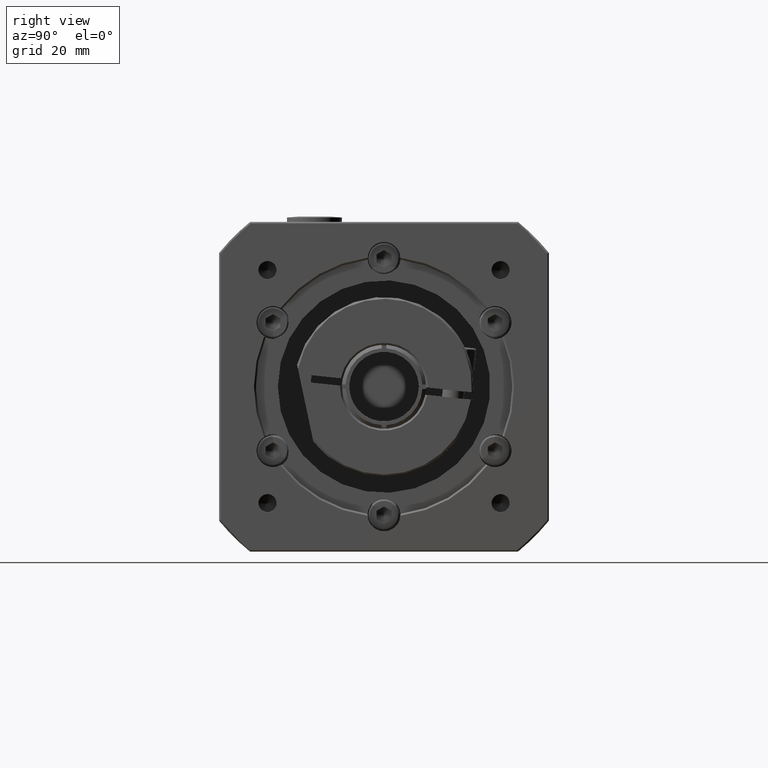
[diagram: clean part render]
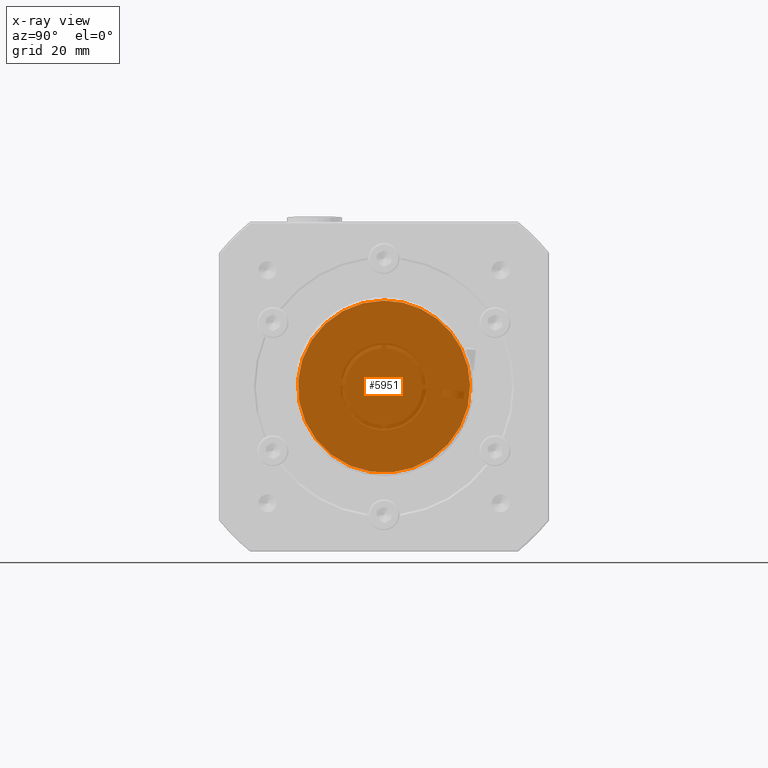
[diagram: x-ray — body ghosted, one internal face saturated and labeled with its STEP entity id]
A machine part, right view, then the same camera in x-ray: the body is ghosted and one INTERNAL B-rep face — a face not visible from any outside direction — is saturated and labeled: STEP entity #5951.
In plain terms, the highlighted planar face has unit normal (1, 0, -0).
Its self-contained STEP definition (entity closure, byte-faithful):
#924=PLANE('',#6646);
#1467=FACE_OUTER_BOUND('',#2020,.T.);
#2020=EDGE_LOOP('',(#4890));
#2392=CIRCLE('',#6647,23.5);
#2873=VERTEX_POINT('',#10490);
#3567=EDGE_CURVE('',#2873,#2873,#2392,.T.);
#4890=ORIENTED_EDGE('',*,*,#3567,.F.);
#5951=ADVANCED_FACE('',(#1467),#924,.F.);
#6646=AXIS2_PLACEMENT_3D('',#10489,#8184,#8185);
#6647=AXIS2_PLACEMENT_3D('',#10491,#8186,#8187);
#8184=DIRECTION('center_axis',(1.,6.10622663543793E-16,-4.82820056512866E-15));
#8185=DIRECTION('ref_axis',(-4.9737991503207E-15,1.4210854715202E-15,-1.));
#8186=DIRECTION('center_axis',(1.,6.10622663543793E-16,-4.82820056512866E-15));
#8187=DIRECTION('ref_axis',(-4.82820056512866E-15,1.19348975147199E-15,
-1.));
#10489=CARTESIAN_POINT('Origin',(-62.0297103443182,-32.3933275789247,10.8503877548313));
#10490=CARTESIAN_POINT('',(-62.0297103443181,-32.3933275789247,34.3503877548313));
#10491=CARTESIAN_POINT('Origin',(-62.0297103443182,-32.3933275789247,10.8503877548313));